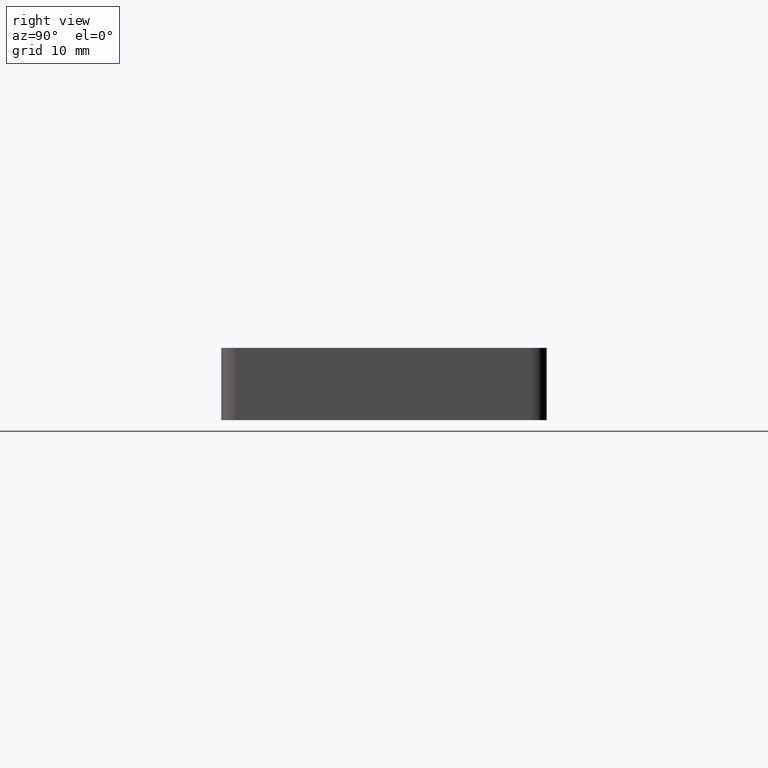
[diagram: clean part render]
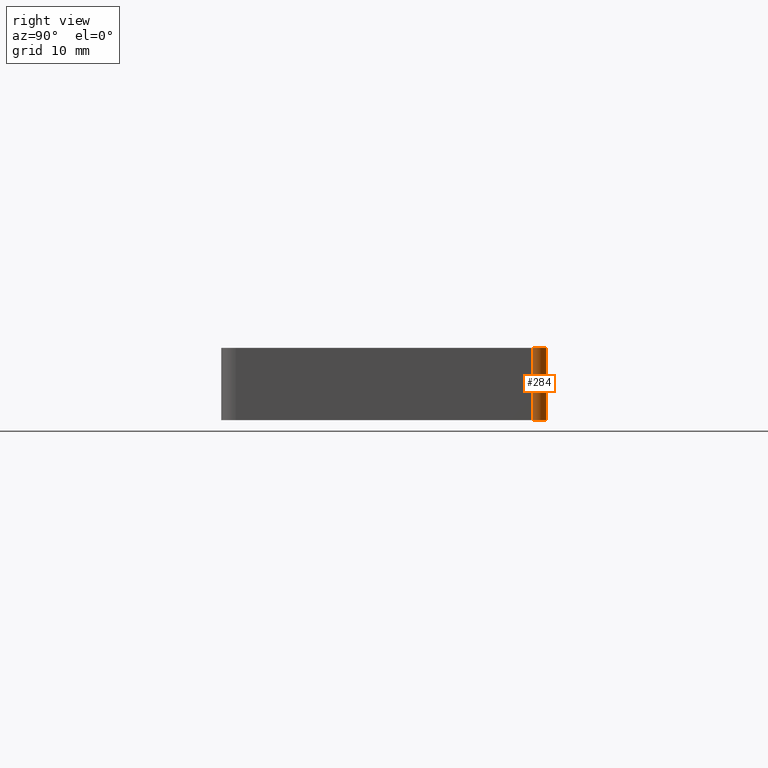
[diagram: same view with one face highlighted and labeled with its STEP entity id]
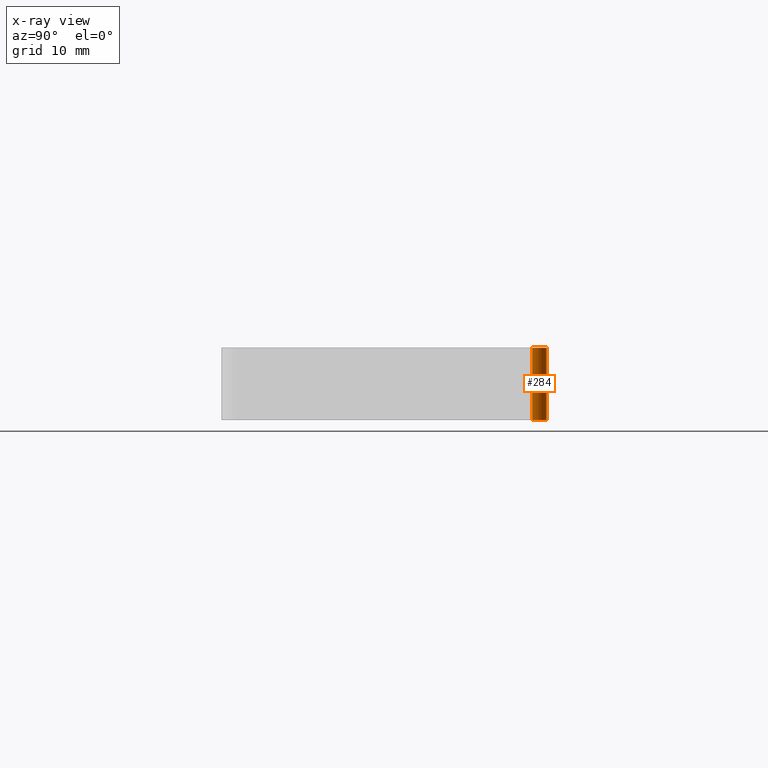
[diagram: x-ray of the same camera — body ghosted, the highlighted face saturated]
A machine part, right view. The second image highlights one B-rep face of the part: STEP entity #284.
The next image is the same camera in x-ray: the body ghosted, the highlighted face saturated — about 0% of this face is hidden behind the body in this view.
In plain terms, the highlighted cylindrical surface (edge-blend (fillet) strip) has radius 2 mm, axis along (0, 0, 1).
Its self-contained STEP definition (entity closure, byte-faithful):
#27=LINE('',#480,#43);
#29=LINE('',#485,#45);
#43=VECTOR('',#398,10.);
#45=VECTOR('',#404,10.);
#82=FACE_OUTER_BOUND('',#109,.T.);
#109=EDGE_LOOP('',(#239,#240,#241,#242));
#129=CIRCLE('',#312,2.);
#133=CIRCLE('',#321,2.);
#150=VERTEX_POINT('',#455);
#151=VERTEX_POINT('',#457);
#158=VERTEX_POINT('',#479);
#159=VERTEX_POINT('',#483);
#177=EDGE_CURVE('',#151,#150,#129,.T.);
#188=EDGE_CURVE('',#158,#151,#27,.T.);
#190=EDGE_CURVE('',#159,#158,#133,.T.);
#191=EDGE_CURVE('',#150,#159,#29,.T.);
#239=ORIENTED_EDGE('',*,*,#190,.T.);
#240=ORIENTED_EDGE('',*,*,#188,.T.);
#241=ORIENTED_EDGE('',*,*,#177,.T.);
#242=ORIENTED_EDGE('',*,*,#191,.T.);
#270=CYLINDRICAL_SURFACE('',#320,2.);
#284=ADVANCED_FACE('',(#82),#270,.T.);
#312=AXIS2_PLACEMENT_3D('',#458,#375,#376);
#320=AXIS2_PLACEMENT_3D('',#482,#400,#401);
#321=AXIS2_PLACEMENT_3D('',#484,#402,#403);
#375=DIRECTION('center_axis',(0.,0.,1.));
#376=DIRECTION('ref_axis',(0.707106781186546,0.707106781186549,0.));
#398=DIRECTION('',(0.,0.,-1.));
#400=DIRECTION('center_axis',(0.,0.,1.));
#401=DIRECTION('ref_axis',(0.707106781186546,0.707106781186549,0.));
#402=DIRECTION('center_axis',(0.,0.,-1.));
#403=DIRECTION('ref_axis',(0.707106781186546,0.707106781186549,0.));
#404=DIRECTION('',(0.,0.,1.));
#455=CARTESIAN_POINT('',(43.,22.5,0.));
#457=CARTESIAN_POINT('',(45.,20.5,0.));
#458=CARTESIAN_POINT('Origin',(43.,20.5,0.));
#479=CARTESIAN_POINT('',(45.,20.5,10.));
#480=CARTESIAN_POINT('',(45.,20.5,0.));
#482=CARTESIAN_POINT('Origin',(43.,20.5,0.));
#483=CARTESIAN_POINT('',(43.,22.5,10.));
#484=CARTESIAN_POINT('Origin',(43.,20.5,10.));
#485=CARTESIAN_POINT('',(43.,22.5,0.));